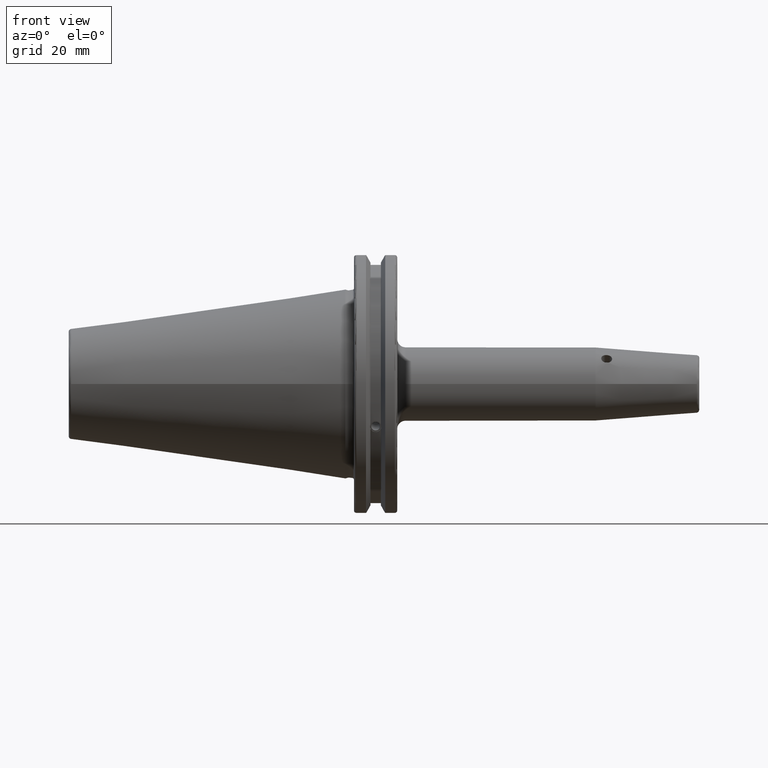
[diagram: clean part render]
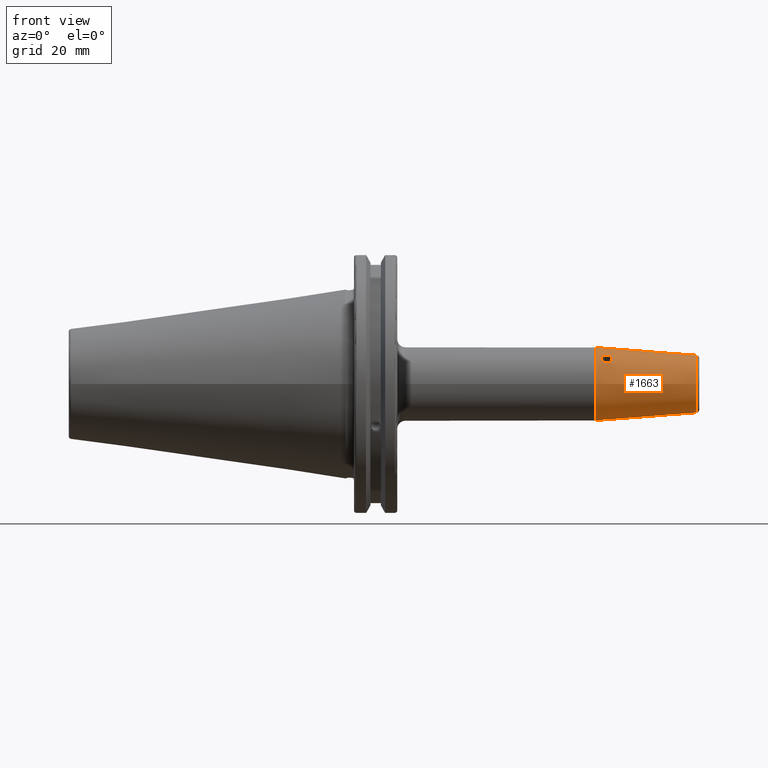
[diagram: same view with one face highlighted and labeled with its STEP entity id]
A machine part, front view. The second image highlights one B-rep face of the part: STEP entity #1663.
In plain terms, the highlighted conical surface has half-angle 4.5 deg.
Its self-contained STEP definition (entity closure, byte-faithful):
#34=FACE_BOUND('',#309,.T.);
#104=CONICAL_SURFACE('',#1795,12.,0.0785398163397448);
#128=CIRCLE('',#1793,10.5725268420749);
#129=CIRCLE('',#1794,10.5725268420749);
#130=CIRCLE('',#1796,13.5);
#210=FACE_OUTER_BOUND('',#308,.T.);
#308=EDGE_LOOP('',(#1174,#1175,#1176,#1177,#1178));
#309=EDGE_LOOP('',(#1179,#1180));
#429=B_SPLINE_CURVE_WITH_KNOTS('',3,(#2638,#2639,#2640,#2641,#2642,#2643,
#2644,#2645,#2646,#2647),.UNSPECIFIED.,.F.,.F.,(4,2,2,2,4),(0.,0.0747544511915006,
0.149508902383001,0.224326184208692,0.299143466034383),.UNSPECIFIED.);
#430=B_SPLINE_CURVE_WITH_KNOTS('',3,(#2648,#2649,#2650,#2651,#2652,#2653,
#2654,#2655,#2656,#2657,#2658,#2659,#2660,#2661,#2662,#2663,#2664,#2665,
#2666,#2667,#2668,#2669,#2670,#2671,#2672,#2673),.UNSPECIFIED.,.F.,.F.,
(4,2,2,2,2,2,2,2,2,2,2,2,4),(0.299143466034383,0.373960747860074,0.448778029685765,
0.523532480877265,0.598286932068766,0.674768915434236,0.751250898799707,
0.827516767552462,0.903782636305217,0.980048505057972,1.05631437381073,
1.1327963571762,1.20927834054167),.UNSPECIFIED.);
#477=LINE('',#2700,#578);
#578=VECTOR('',#2012,12.);
#694=VERTEX_POINT('',#2636);
#695=VERTEX_POINT('',#2637);
#701=VERTEX_POINT('',#2693);
#702=VERTEX_POINT('',#2695);
#703=VERTEX_POINT('',#2699);
#873=EDGE_CURVE('',#694,#695,#429,.T.);
#874=EDGE_CURVE('',#695,#694,#430,.T.);
#885=EDGE_CURVE('',#701,#702,#128,.T.);
#886=EDGE_CURVE('',#702,#701,#129,.T.);
#887=EDGE_CURVE('',#702,#703,#477,.T.);
#888=EDGE_CURVE('',#703,#703,#130,.T.);
#1174=ORIENTED_EDGE('',*,*,#886,.F.);
#1175=ORIENTED_EDGE('',*,*,#887,.T.);
#1176=ORIENTED_EDGE('',*,*,#888,.T.);
#1177=ORIENTED_EDGE('',*,*,#887,.F.);
#1178=ORIENTED_EDGE('',*,*,#885,.F.);
#1179=ORIENTED_EDGE('',*,*,#873,.T.);
#1180=ORIENTED_EDGE('',*,*,#874,.T.);
#1663=ADVANCED_FACE('',(#210,#34),#104,.T.);
#1793=AXIS2_PLACEMENT_3D('',#2696,#2006,#2007);
#1794=AXIS2_PLACEMENT_3D('',#2697,#2008,#2009);
#1795=AXIS2_PLACEMENT_3D('',#2698,#2010,#2011);
#1796=AXIS2_PLACEMENT_3D('',#2701,#2013,#2014);
#2006=DIRECTION('center_axis',(1.,0.,0.));
#2007=DIRECTION('ref_axis',(0.,-1.,3.06161699786838E-17));
#2008=DIRECTION('center_axis',(1.,0.,0.));
#2009=DIRECTION('ref_axis',(0.,-1.,3.06161699786838E-17));
#2010=DIRECTION('center_axis',(-1.,0.,0.));
#2011=DIRECTION('ref_axis',(0.,1.,0.));
#2012=DIRECTION('',(-0.996917333733128,-0.0784590957278449,-9.60846804471011E-18));
#2013=DIRECTION('center_axis',(1.,0.,0.));
#2014=DIRECTION('ref_axis',(0.,0.,-1.));
#2636=CARTESIAN_POINT('',(96.0238927003109,-7.79333699242128,10.6215622800785));
#2637=CARTESIAN_POINT('',(98.,-9.20543754123133,9.20543754123134));
#2638=CARTESIAN_POINT('Ctrl Pts',(96.0238927003109,-7.79333699242128,10.6215622800785));
#2639=CARTESIAN_POINT('Ctrl Pts',(96.272306060866,-7.7817714598685,10.6057995811947));
#2640=CARTESIAN_POINT('Ctrl Pts',(96.5373058344725,-7.80975208688402,10.5597722429259));
#2641=CARTESIAN_POINT('Ctrl Pts',(97.0244662279592,-7.94918028389065,10.407013433196));
#2642=CARTESIAN_POINT('Ctrl Pts',(97.246616655752,-8.06033605651233,10.299983410268));
#2643=CARTESIAN_POINT('Ctrl Pts',(97.5971741006553,-8.31841973975064,10.0569262738217));
#2644=CARTESIAN_POINT('Ctrl Pts',(97.7490861129052,-8.48264694470629,9.90451426451853));
#2645=CARTESIAN_POINT('Ctrl Pts',(97.9505018858778,-8.83812101535688,9.56709010925021));
#2646=CARTESIAN_POINT('Ctrl Pts',(98.,-9.0290915168017,9.38178356566097));
#2647=CARTESIAN_POINT('Ctrl Pts',(98.,-9.20543754123133,9.20543754123134));
#2648=CARTESIAN_POINT('Ctrl Pts',(98.,-9.20543754123133,9.20543754123134));
#2649=CARTESIAN_POINT('Ctrl Pts',(98.,-9.38178356566097,9.0290915168017));
#2650=CARTESIAN_POINT('Ctrl Pts',(97.9505018858778,-9.56709010925021,8.83812101535689));
#2651=CARTESIAN_POINT('Ctrl Pts',(97.7490861129052,-9.90451426451852,8.4826469447063));
#2652=CARTESIAN_POINT('Ctrl Pts',(97.5971741006553,-10.0569262738217,8.31841973975064));
#2653=CARTESIAN_POINT('Ctrl Pts',(97.246616655752,-10.299983410268,8.06033605651234));
#2654=CARTESIAN_POINT('Ctrl Pts',(97.0244662279592,-10.4070134331959,7.94918028389067));
#2655=CARTESIAN_POINT('Ctrl Pts',(96.5373058344725,-10.5597722429259,7.80975208688402));
#2656=CARTESIAN_POINT('Ctrl Pts',(96.272306060866,-10.6057995811947,7.78177145986851));
#2657=CARTESIAN_POINT('Ctrl Pts',(95.7697386505265,-10.6376892458258,7.8051697977488));
#2658=CARTESIAN_POINT('Ctrl Pts',(95.4990714900651,-10.624353089965,7.85987948645055));
#2659=CARTESIAN_POINT('Ctrl Pts',(95.0012603990857,-10.5301177235854,8.05035724435673));
#2660=CARTESIAN_POINT('Ctrl Pts',(94.774043004068,-10.4489388858726,8.18579472150445));
#2661=CARTESIAN_POINT('Ctrl Pts',(94.4149833366872,-10.2451757818536,8.48378827232609));
#2662=CARTESIAN_POINT('Ctrl Pts',(94.2589429766577,-10.1090121849334,8.66617298703745));
#2663=CARTESIAN_POINT('Ctrl Pts',(94.051428598692,-9.79048844128325,9.04854294131428));
#2664=CARTESIAN_POINT('Ctrl Pts',(94.,-9.60779996013843,9.24827920701739));
#2665=CARTESIAN_POINT('Ctrl Pts',(94.,-9.24827920701738,9.60779996013843));
#2666=CARTESIAN_POINT('Ctrl Pts',(94.051428598692,-9.04854294131428,9.79048844128325));
#2667=CARTESIAN_POINT('Ctrl Pts',(94.2589429766577,-8.66617298703745,10.1090121849334));
#2668=CARTESIAN_POINT('Ctrl Pts',(94.4149833366872,-8.48378827232609,10.2451757818536));
#2669=CARTESIAN_POINT('Ctrl Pts',(94.774043004068,-8.18579472150445,10.4489388858726));
#2670=CARTESIAN_POINT('Ctrl Pts',(95.0012603990857,-8.05035724435673,10.5301177235854));
#2671=CARTESIAN_POINT('Ctrl Pts',(95.4990714900651,-7.85987948645054,10.624353089965));
#2672=CARTESIAN_POINT('Ctrl Pts',(95.7697386505265,-7.8051697977488,10.6376892458258));
#2673=CARTESIAN_POINT('Ctrl Pts',(96.0238927003109,-7.79333699242128,10.6215622800785));
#2693=CARTESIAN_POINT('',(129.078459095728,-1.29476111560465E-15,10.5725268420749));
#2695=CARTESIAN_POINT('',(129.078459095728,-10.5725268420749,-1.29476111560465E-15));
#2696=CARTESIAN_POINT('Origin',(129.078459095728,0.,-1.61845139450582E-15));
#2697=CARTESIAN_POINT('Origin',(129.078459095728,0.,-1.61845139450582E-15));
#2698=CARTESIAN_POINT('Origin',(110.940692895738,0.,0.));
#2699=CARTESIAN_POINT('',(91.8813857914759,-13.5,-1.65327317884893E-15));
#2700=CARTESIAN_POINT('',(110.940692895738,-12.,-1.46957615897682E-15));
#2701=CARTESIAN_POINT('Origin',(91.8813857914759,0.,0.));